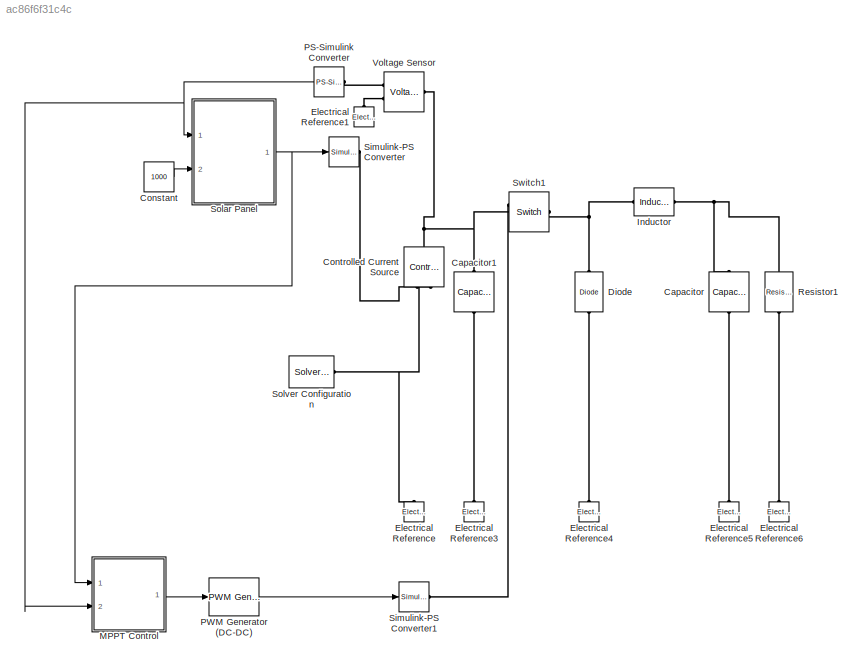
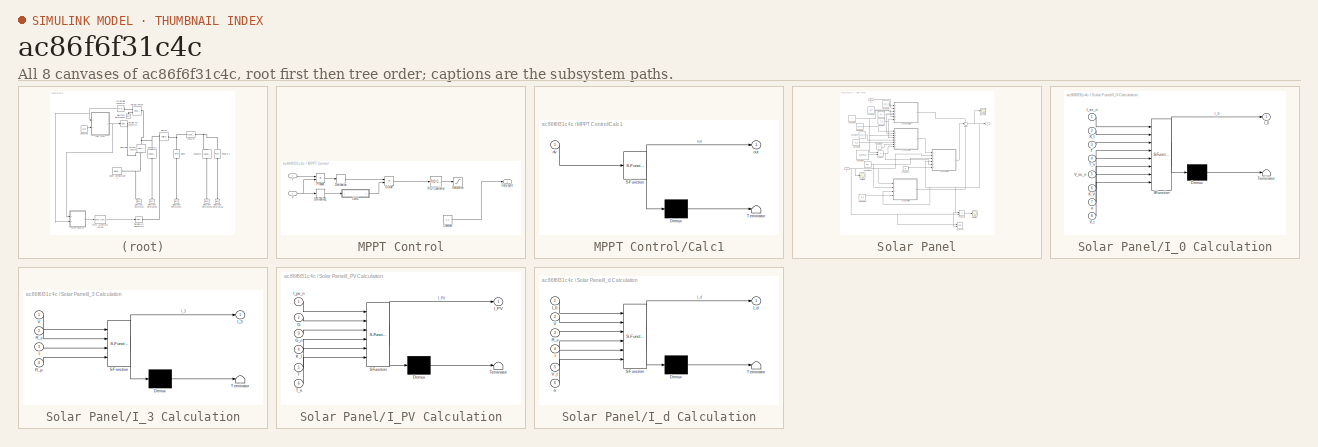
[diagram: thumbnail index - all 8 canvases of the model, root first then tree order]
MODEL slx_ac86f6f31c4c
KIND model
CONFIG AbsTol = auto
CONFIG FixedStep = auto
CONFIG MaxStep = auto
CONFIG MinStep = auto
CONFIG RelTol = 1e-3
CONFIG SampleTimeConstraint = Unconstrained
CONFIG Solver = ode2
CONFIG SolverMode = Auto
CONFIG SolverName = ode2
CONFIG StartTime = 0.0
CONFIG StopTime = 10.0
BLOCK [Reference] Capacitor  REF=fl_lib/Electrical/Electrical Elements/Capacitor
  Ports = [0, 0, 0, 0, 0, 1, 1]
  SourceBlock = fl_lib/Electrical/Electrical Elements/Capacitor
  SourceType = Capacitor
BLOCK [Reference] Capacitor1  REF=fl_lib/Electrical/Electrical Elements/Capacitor
  Ports = [0, 0, 0, 0, 0, 1, 1]
  SourceBlock = fl_lib/Electrical/Electrical Elements/Capacitor
  SourceType = Capacitor
BLOCK [Constant] Constant
  Value = 1000
BLOCK [Reference] Controlled Current Source  REF=fl_lib/Electrical/Electrical Sources/Controlled Current
Source
  Ports = [0, 0, 0, 0, 0, 1, 2]
  SourceBlock = fl_lib/Electrical/Electrical Sources/Controlled Current\nSource
  SourceType = Controlled Current\nSource
BLOCK [Reference] Diode  REF=fl_lib/Electrical/Electrical Elements/Diode
  Ports = [0, 0, 0, 0, 0, 1, 1]
  SourceBlock = fl_lib/Electrical/Electrical Elements/Diode
  SourceType = Diode
BLOCK [Reference] Electrical Reference  REF=fl_lib/Electrical/Electrical Elements/Electrical Reference
  Ports = [0, 0, 0, 0, 0, 1]
  SourceBlock = fl_lib/Electrical/Electrical Elements/Electrical Reference
  SourceType = Electrical Reference
BLOCK [Reference] Electrical Reference1  REF=fl_lib/Electrical/Electrical Elements/Electrical Reference
  Ports = [0, 0, 0, 0, 0, 1]
  SourceBlock = fl_lib/Electrical/Electrical Elements/Electrical Reference
  SourceType = Electrical Reference
BLOCK [Reference] Electrical Reference3  REF=fl_lib/Electrical/Electrical Elements/Electrical Reference
  Ports = [0, 0, 0, 0, 0, 1]
  SourceBlock = fl_lib/Electrical/Electrical Elements/Electrical Reference
  SourceType = Electrical Reference
BLOCK [Reference] Electrical Reference4  REF=fl_lib/Electrical/Electrical Elements/Electrical Reference
  Ports = [0, 0, 0, 0, 0, 1]
  SourceBlock = fl_lib/Electrical/Electrical Elements/Electrical Reference
  SourceType = Electrical Reference
BLOCK [Reference] Electrical Reference5  REF=fl_lib/Electrical/Electrical Elements/Electrical Reference
  Ports = [0, 0, 0, 0, 0, 1]
  SourceBlock = fl_lib/Electrical/Electrical Elements/Electrical Reference
  SourceType = Electrical Reference
BLOCK [Reference] Electrical Reference6  REF=fl_lib/Electrical/Electrical Elements/Electrical Reference
  Ports = [0, 0, 0, 0, 0, 1]
  SourceBlock = fl_lib/Electrical/Electrical Elements/Electrical Reference
  SourceType = Electrical Reference
BLOCK [Reference] Inductor  REF=fl_lib/Electrical/Electrical Elements/Inductor
  Ports = [0, 0, 0, 0, 0, 1, 1]
  SourceBlock = fl_lib/Electrical/Electrical Elements/Inductor
  SourceType = Inductor
BLOCK [SubSystem] MPPT Control
  Ports = [2, 1]
  RequestExecContextInheritance = off
  Variant = off
BLOCK [SubSystem] MPPT Control/Calc1
  ErrorFcn = Stateflow.Translate.translate
  PermitHierarchicalResolution = ExplicitOnly
  Ports = [1, 1]
  RequestExecContextInheritance = off
  SFBlockType = MATLAB Function
  TreatAsAtomicUnit = on
  Variant = off
BLOCK [Demux] MPPT Control/Calc1/ Demux 
  Outputs = 1
  Ports = [1, 1]
BLOCK [S-Function] MPPT Control/Calc1/ SFunction 
  EnableBusSupport = on
  FunctionName = sf_sfun
  PortCounts = [1 2]
  Ports = [1, 2]
  SFunctionDeploymentMode = off
  Tag = Stateflow S-Function GSK_PVModel_01 5
BLOCK [Terminator] MPPT Control/Calc1/ Terminator 
BLOCK [Inport] MPPT Control/Calc1/dv
  IconDisplay = Port number
BLOCK [Outport] MPPT Control/Calc1/out
  IconDisplay = Port number
BLOCK [Constant] MPPT Control/Constant
  Value = 0.5
BLOCK [Derivative] MPPT Control/Derivative
BLOCK [Derivative] MPPT Control/Derivative1
BLOCK [Product] MPPT Control/Divide
  InputSameDT = off
  Inputs = */
  OutDataTypeStr = Inherit: Inherit via internal rule
  Ports = [2, 1]
  RndMeth = Floor
  SaturateOnIntegerOverflow = off
BLOCK [Outport] MPPT Control/Duty cycle
  IconDisplay = Port number
BLOCK [Inport] MPPT Control/I
  IconDisplay = Port number
BLOCK [Reference] MPPT Control/PID Controller  REF=simulink/Continuous/PID Controller
  Ports = [1, 1]
  SourceBlock = simulink/Continuous/PID Controller
  SourceType = PID 1dof
BLOCK [Product] MPPT Control/Product
  InputSameDT = off
  OutDataTypeStr = Inherit: Inherit via internal rule
  Ports = [2, 1]
  RndMeth = Floor
  SaturateOnIntegerOverflow = off
BLOCK [Saturate] MPPT Control/Saturation
  InputPortMap = u0
  LowerLimit = 0
  Ports = [1, 1]
  UpperLimit = 1
BLOCK [Inport] MPPT Control/V
  IconDisplay = Port number
  Port = 2
BLOCK [Reference] PS-Simulink Converter  REF=nesl_utility/PS-Simulink
Converter
  Ports = [0, 1, 0, 0, 0, 1]
  SourceBlock = nesl_utility/PS-Simulink\nConverter
  SourceType = PS-Simulink\nConverter
BLOCK [Reference] PWM Generator (DC-DC)  REF=powerlib_meascontrol/Pulse & Signal
Generators/PWM Generator
(DC-DC)
  Ports = [1, 1]
  SourceBlock = powerlib_meascontrol/Pulse & Signal\nGenerators/PWM Generator\n(DC-DC)
  SourceType = PWM Generator (DC-DC)
BLOCK [Reference] Resistor1  REF=fl_lib/Electrical/Electrical Elements/Resistor
  Ports = [0, 0, 0, 0, 0, 1, 1]
  SourceBlock = fl_lib/Electrical/Electrical Elements/Resistor
  SourceType = Resistor
BLOCK [Reference] Simulink-PS Converter  REF=nesl_utility/Simulink-PS
Converter
  Ports = [1, 0, 0, 0, 0, 0, 1]
  SourceBlock = nesl_utility/Simulink-PS\nConverter
  SourceType = Simulink-PS\nConverter
BLOCK [Reference] Simulink-PS Converter1  REF=nesl_utility/Simulink-PS
Converter
  Ports = [1, 0, 0, 0, 0, 0, 1]
  SourceBlock = nesl_utility/Simulink-PS\nConverter
  SourceType = Simulink-PS\nConverter
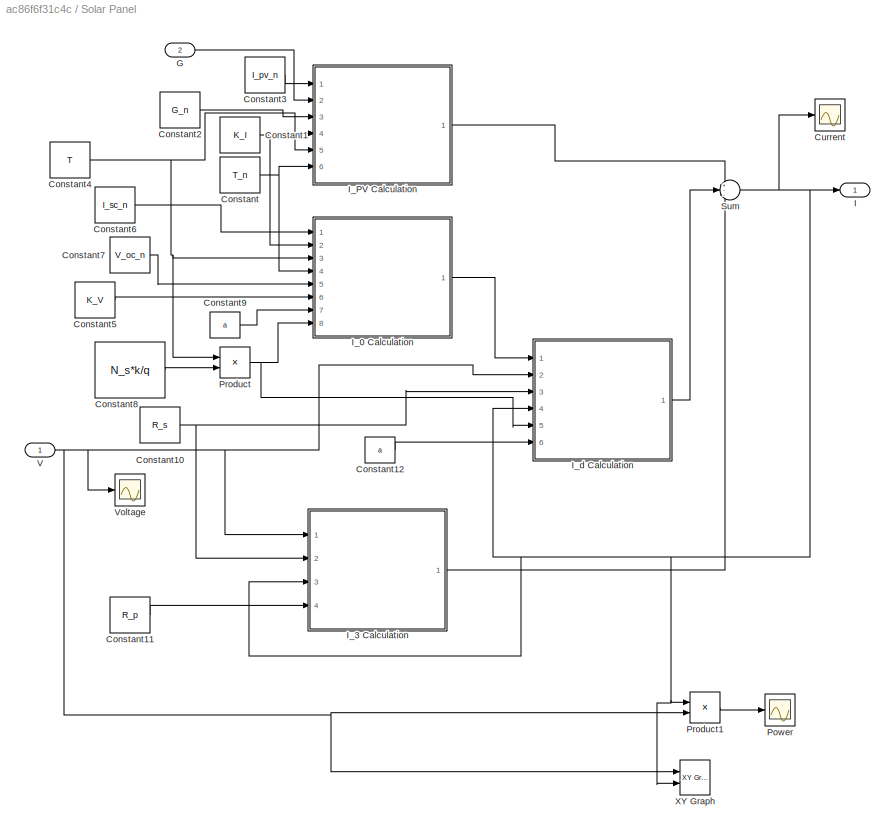
BLOCK [SubSystem] Solar Panel
  Ports = [2, 1]
  RequestExecContextInheritance = off
  Variant = off
BLOCK [Constant] Solar Panel/Constant
  Value = T_n
BLOCK [Constant] Solar Panel/Constant1
  Value = K_I
BLOCK [Constant] Solar Panel/Constant10
  Value = R_s
BLOCK [Constant] Solar Panel/Constant11
  Value = R_p
BLOCK [Constant] Solar Panel/Constant12
  Value = a
BLOCK [Constant] Solar Panel/Constant2
  Value = G_n
BLOCK [Constant] Solar Panel/Constant3
  Value = I_pv_n
BLOCK [Constant] Solar Panel/Constant4
  Value = T
BLOCK [Constant] Solar Panel/Constant5
  Value = K_V
BLOCK [Constant] Solar Panel/Constant6
  Value = I_sc_n
BLOCK [Constant] Solar Panel/Constant7
  Value = V_oc_n
BLOCK [Constant] Solar Panel/Constant8
  Value = N_s*k/q
BLOCK [Constant] Solar Panel/Constant9
  Value = a
BLOCK [Scope] Solar Panel/Current
  Ports = [1]
  ScopeSpecificationString = Simulink.scopes.TimeScopeBlockCfg('CurrentConfiguration', extmgr.ConfigurationSet(extmgr.Configuration('Core','General UI',true),extmgr.Configuration('Core','Source UI',true),extmgr.Configuration('Sources','WiredSimulink',true,'DataLoggingVariableName','ScopeData1'),extmgr.Configuration('Visuals','Time Domain',true,'SerializedDisplays',{struct('MinYLimReal','6.5184','MaxYLimReal','6.55628','YLabel...<+1436ch>
BLOCK [Inport] Solar Panel/G
  IconDisplay = Port number
  Port = 2
BLOCK [Outport] Solar Panel/I
  IconDisplay = Port number
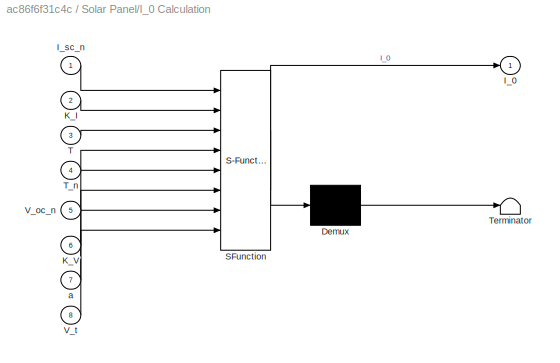
BLOCK [SubSystem] Solar Panel/I_0 Calculation
  ErrorFcn = Stateflow.Translate.translate
  PermitHierarchicalResolution = ExplicitOnly
  Ports = [8, 1]
  RequestExecContextInheritance = off
  SFBlockType = MATLAB Function
  TreatAsAtomicUnit = on
  Variant = off
BLOCK [Demux] Solar Panel/I_0 Calculation/ Demux 
  Outputs = 1
  Ports = [1, 1]
BLOCK [S-Function] Solar Panel/I_0 Calculation/ SFunction 
  EnableBusSupport = on
  FunctionName = sf_sfun
  PortCounts = [8 2]
  Ports = [8, 2]
  SFunctionDeploymentMode = off
  Tag = Stateflow S-Function GSK_PVModel_01 2
BLOCK [Terminator] Solar Panel/I_0 Calculation/ Terminator 
BLOCK [Outport] Solar Panel/I_0 Calculation/I_0
  IconDisplay = Port number
BLOCK [Inport] Solar Panel/I_0 Calculation/I_sc_n
  IconDisplay = Port number
BLOCK [Inport] Solar Panel/I_0 Calculation/K_I
  IconDisplay = Port number
  Port = 2
BLOCK [Inport] Solar Panel/I_0 Calculation/K_V
  IconDisplay = Port number
  Port = 6
BLOCK [Inport] Solar Panel/I_0 Calculation/T
  IconDisplay = Port number
  Port = 3
BLOCK [Inport] Solar Panel/I_0 Calculation/T_n
  IconDisplay = Port number
  Port = 4
BLOCK [Inport] Solar Panel/I_0 Calculation/V_oc_n
  IconDisplay = Port number
  Port = 5
BLOCK [Inport] Solar Panel/I_0 Calculation/V_t
  IconDisplay = Port number
  Port = 8
BLOCK [Inport] Solar Panel/I_0 Calculation/a
  IconDisplay = Port number
  Port = 7
BLOCK [SubSystem] Solar Panel/I_3 Calculation
  ErrorFcn = Stateflow.Translate.translate
  PermitHierarchicalResolution = ExplicitOnly
  Ports = [4, 1]
  RequestExecContextInheritance = off
  SFBlockType = MATLAB Function
  TreatAsAtomicUnit = on
  Variant = off
BLOCK [Demux] Solar Panel/I_3 Calculation/ Demux 
  Outputs = 1
  Ports = [1, 1]
BLOCK [S-Function] Solar Panel/I_3 Calculation/ SFunction 
  EnableBusSupport = on
  FunctionName = sf_sfun
  PortCounts = [4 2]
  Ports = [4, 2]
  SFunctionDeploymentMode = off
  Tag = Stateflow S-Function GSK_PVModel_01 4
BLOCK [Terminator] Solar Panel/I_3 Calculation/ Terminator 
BLOCK [Inport] Solar Panel/I_3 Calculation/I
  IconDisplay = Port number
  Port = 3
BLOCK [Outport] Solar Panel/I_3 Calculation/I_3
  IconDisplay = Port number
BLOCK [Inport] Solar Panel/I_3 Calculation/R_p
  IconDisplay = Port number
  Port = 4
BLOCK [Inport] Solar Panel/I_3 Calculation/R_s
  IconDisplay = Port number
  Port = 2
BLOCK [Inport] Solar Panel/I_3 Calculation/V
  IconDisplay = Port number
BLOCK [SubSystem] Solar Panel/I_PV Calculation
  ErrorFcn = Stateflow.Translate.translate
  PermitHierarchicalResolution = ExplicitOnly
  Ports = [6, 1]
  RequestExecContextInheritance = off
  SFBlockType = MATLAB Function
  TreatAsAtomicUnit = on
  Variant = off
BLOCK [Demux] Solar Panel/I_PV Calculation/ Demux 
  Outputs = 1
  Ports = [1, 1]
BLOCK [S-Function] Solar Panel/I_PV Calculation/ SFunction 
  EnableBusSupport = on
  FunctionName = sf_sfun
  PortCounts = [6 2]
  Ports = [6, 2]
  SFunctionDeploymentMode = off
  Tag = Stateflow S-Function GSK_PVModel_01 1
BLOCK [Terminator] Solar Panel/I_PV Calculation/ Terminator 
BLOCK [Inport] Solar Panel/I_PV Calculation/G
  IconDisplay = Port number
  Port = 2
BLOCK [Inport] Solar Panel/I_PV Calculation/G_n
  IconDisplay = Port number
  Port = 3
BLOCK [Outport] Solar Panel/I_PV Calculation/I_PV
  IconDisplay = Port number
BLOCK [Inport] Solar Panel/I_PV Calculation/I_pv_n
  IconDisplay = Port number
BLOCK [Inport] Solar Panel/I_PV Calculation/K_I
  IconDisplay = Port number
  Port = 4
BLOCK [Inport] Solar Panel/I_PV Calculation/T
  IconDisplay = Port number
  Port = 5
BLOCK [Inport] Solar Panel/I_PV Calculation/T_n
  IconDisplay = Port number
  Port = 6
BLOCK [SubSystem] Solar Panel/I_d Calculation
  ErrorFcn = Stateflow.Translate.translate
  PermitHierarchicalResolution = ExplicitOnly
  Ports = [6, 1]
  RequestExecContextInheritance = off
  SFBlockType = MATLAB Function
  TreatAsAtomicUnit = on
  Variant = off
BLOCK [Demux] Solar Panel/I_d Calculation/ Demux 
  Outputs = 1
  Ports = [1, 1]
BLOCK [S-Function] Solar Panel/I_d Calculation/ SFunction 
  EnableBusSupport = on
  FunctionName = sf_sfun
  PortCounts = [6 2]
  Ports = [6, 2]
  SFunctionDeploymentMode = off
  Tag = Stateflow S-Function GSK_PVModel_01 3
BLOCK [Terminator] Solar Panel/I_d Calculation/ Terminator 
BLOCK [Inport] Solar Panel/I_d Calculation/I
  IconDisplay = Port number
  Port = 4
BLOCK [Inport] Solar Panel/I_d Calculation/I_0
  IconDisplay = Port number
BLOCK [Outport] Solar Panel/I_d Calculation/I_d
  IconDisplay = Port number
BLOCK [Inport] Solar Panel/I_d Calculation/R_s
  IconDisplay = Port number
  Port = 3
BLOCK [Inport] Solar Panel/I_d Calculation/V
  IconDisplay = Port number
  Port = 2
BLOCK [Inport] Solar Panel/I_d Calculation/V_t
  IconDisplay = Port number
  Port = 5
BLOCK [Inport] Solar Panel/I_d Calculation/a
  IconDisplay = Port number
  Port = 6
BLOCK [Scope] Solar Panel/Power
  Ports = [1]
  ScopeSpecificationString = Simulink.scopes.TimeScopeBlockCfg('CurrentConfiguration', extmgr.ConfigurationSet(extmgr.Configuration('Core','General UI',true),extmgr.Configuration('Core','Source UI',true),extmgr.Configuration('Sources','WiredSimulink',true,'DataLoggingVariableName','ScopeData2'),extmgr.Configuration('Visuals','Time Domain',true,'SerializedDisplays',{struct('MinYLimReal','71.28053','MaxYLimReal','90.93263','YLa...<+1444ch>
BLOCK [Product] Solar Panel/Product
  InputSameDT = off
  OutDataTypeStr = Inherit: Inherit via internal rule
  Ports = [2, 1]
  RndMeth = Floor
  SaturateOnIntegerOverflow = off
BLOCK [Product] Solar Panel/Product1
  InputSameDT = off
  OutDataTypeStr = Inherit: Inherit via internal rule
  Ports = [2, 1]
  RndMeth = Floor
  SaturateOnIntegerOverflow = off
BLOCK [Sum] Solar Panel/Sum
  IconShape = round
  InputSameDT = off
  Inputs = +--
  OutDataTypeStr = Inherit: Inherit via internal rule
  Ports = [3, 1]
  SaturateOnIntegerOverflow = off
BLOCK [Inport] Solar Panel/V
  IconDisplay = Port number
BLOCK [Scope] Solar Panel/Voltage
  Ports = [1]
  ScopeSpecificationString = Simulink.scopes.TimeScopeBlockCfg('CurrentConfiguration', extmgr.ConfigurationSet(extmgr.Configuration('Core','General UI',true),extmgr.Configuration('Core','Source UI',true),extmgr.Configuration('Sources','WiredSimulink',true),extmgr.Configuration('Visuals','Time Domain',true,'SerializedDisplays',{struct('MinYLimReal','-3.75362','MaxYLimReal','33.78265','YLabelReal','','MinYLimMag','0.00000','Max...<+1405ch>
BLOCK [Reference] Solar Panel/XY Graph  REF=simulink/Sinks/XY Graph
  Ports = [2]
  SourceBlock = simulink/Sinks/XY Graph
  SourceType = XY scope.
BLOCK [Reference] Solver Configuration  REF=nesl_utility/Solver
Configuration
  Ports = [0, 0, 0, 0, 0, 0, 1]
  SourceBlock = nesl_utility/Solver\nConfiguration
  SourceType = Solver\nConfiguration
BLOCK [Reference] Switch1  REF=fl_lib/Electrical/Electrical Elements/Switch
  Ports = [0, 0, 0, 0, 0, 1, 2]
  SourceBlock = fl_lib/Electrical/Electrical Elements/Switch
  SourceType = Switch
BLOCK [Reference] Voltage Sensor  REF=fl_lib/Electrical/Electrical Sensors/Voltage Sensor
  Ports = [0, 0, 0, 0, 0, 1, 2]
  SourceBlock = fl_lib/Electrical/Electrical Sensors/Voltage Sensor
  SourceType = Voltage Sensor
LINE Constant:1 -> Solar Panel:2
LINE MPPT Control/Calc1:1 -> MPPT Control/Divide:2
LINE MPPT Control/Constant:1 -> MPPT Control/Duty cycle:1
LINE MPPT Control/Derivative1:1 -> MPPT Control/Calc1:1
LINE MPPT Control/Derivative:1 -> MPPT Control/Divide:1
LINE MPPT Control/Divide:1 -> MPPT Control/PID Controller:1
LINE MPPT Control/I:1 -> MPPT Control/Product:1
LINE MPPT Control/PID Controller:1 -> MPPT Control/Saturation:1
LINE MPPT Control/Product:1 -> MPPT Control/Derivative:1
NET MPPT Control/V:1 -> MPPT Control/Derivative1:1, MPPT Control/Product:2
LINE MPPT Control:1 -> PWM Generator (DC-DC):1
NET PS-Simulink Converter:1 -> MPPT Control:2, Solar Panel:1
LINE PWM Generator (DC-DC):1 -> Simulink-PS Converter1:1
NET Solar Panel/Constant10:1 -> Solar Panel/I_3 Calculation:2, Solar Panel/I_d Calculation:3
LINE Solar Panel/Constant11:1 -> Solar Panel/I_3 Calculation:4
LINE Solar Panel/Constant12:1 -> Solar Panel/I_d Calculation:6
NET Solar Panel/Constant1:1 -> Solar Panel/I_0 Calculation:2, Solar Panel/I_PV Calculation:4
LINE Solar Panel/Constant2:1 -> Solar Panel/I_PV Calculation:3
LINE Solar Panel/Constant3:1 -> Solar Panel/I_PV Calculation:1
NET Solar Panel/Constant4:1 -> Solar Panel/I_0 Calculation:3, Solar Panel/I_PV Calculation:5, Solar Panel/Product:1
LINE Solar Panel/Constant5:1 -> Solar Panel/I_0 Calculation:6
LINE Solar Panel/Constant6:1 -> Solar Panel/I_0 Calculation:1
LINE Solar Panel/Constant7:1 -> Solar Panel/I_0 Calculation:5
LINE Solar Panel/Constant8:1 -> Solar Panel/Product:2
LINE Solar Panel/Constant9:1 -> Solar Panel/I_0 Calculation:7
NET Solar Panel/Constant:1 -> Solar Panel/I_0 Calculation:4, Solar Panel/I_PV Calculation:6
LINE Solar Panel/G:1 -> Solar Panel/I_PV Calculation:2
LINE Solar Panel/I_0 Calculation:1 -> Solar Panel/I_d Calculation:1
LINE Solar Panel/I_3 Calculation:1 -> Solar Panel/Sum:3
LINE Solar Panel/I_PV Calculation:1 -> Solar Panel/Sum:1
LINE Solar Panel/I_d Calculation:1 -> Solar Panel/Sum:2
LINE Solar Panel/Product1:1 -> Solar Panel/Power:1
NET Solar Panel/Product:1 -> Solar Panel/I_0 Calculation:8, Solar Panel/I_d Calculation:5
NET Solar Panel/Sum:1 -> Solar Panel/Current:1, Solar Panel/I:1, Solar Panel/I_3 Calculation:3, Solar Panel/I_d Calculation:4, Solar Panel/Product1:1, Solar Panel/XY Graph:2
NET Solar Panel/V:1 -> Solar Panel/I_3 Calculation:1, Solar Panel/I_d Calculation:2, Solar Panel/Product1:2, Solar Panel/Voltage:1, Solar Panel/XY Graph:1
NET Solar Panel:1 -> MPPT Control:1, Simulink-PS Converter:1
PNET net1: Capacitor1:LConn1 -- Controlled Current Source:LConn1 -- Switch1:LConn1 -- Voltage Sensor:LConn1
PLINE Capacitor1:RConn1 -- Electrical Reference3:LConn1
PNET net2: Capacitor:LConn1 -- Inductor:RConn1 -- Resistor1:LConn1
PLINE Capacitor:RConn1 -- Electrical Reference5:LConn1
PLINE Controlled Current Source:RConn1 -- Simulink-PS Converter:RConn1
PNET net3: Controlled Current Source:RConn2 -- Electrical Reference:LConn1 -- Solver Configuration:RConn1
PLINE Diode:LConn1 -- Electrical Reference4:LConn1
PNET net4: Diode:RConn1 -- Inductor:LConn1 -- Switch1:RConn2
PLINE Electrical Reference1:LConn1 -- Voltage Sensor:RConn2
PLINE Electrical Reference6:LConn1 -- Resistor1:RConn1
PLINE PS-Simulink Converter:LConn1 -- Voltage Sensor:RConn1
PLINE Simulink-PS Converter1:RConn1 -- Switch1:RConn1
note: NET lines group one-source signal fan-out (src -> all destinations, sorted); 1:1 wires keep LINE; PNET lines group multi-terminal physical nets as a canonical sorted terminal list (undirected conserving connections); 2-terminal nets keep the pairwise PLINE form
CHART Solar Panel/I_PV Calculation states=1 transitions=1
  STATE_LABEL 'eML_blk_kernel()'
  STATE_LABEL 'SCRIPT:\nfunction I_PV = fcn(I_pv_n, G, G_n, K_I, T, T_n )\n%#codegen\nDelta_T = (T - T_n);\nI_PV = (I_pv_n + K_I*Delta_T)*G/G_n;'
CHART Solar Panel/I_0 Calculation states=1 transitions=1
  STATE_LABEL 'eML_blk_kernel()'
  STATE_LABEL 'SCRIPT:\nfunction I_0 = fcn(I_sc_n, K_I, T, T_n, V_oc_n, K_V, a, V_t)\n%#codegen\nDelta_T = (T - T_n);\nI_0 = (I_sc_n + K_I * Delta_T )/(exp((V_oc_n + K_V*Delta_T)/(a*V_t))-1);'
CHART Solar Panel/I_d Calculation states=1 transitions=1
  STATE_LABEL 'eML_blk_kernel()'
  STATE_LABEL 'SCRIPT:\nfunction I_d = fcn(I_0, V, R_s, I, V_t, a)\n%#codegen\nI_d = I_0*(exp((V+R_s*I)/(V_t*a))-1);'
CHART Solar Panel/I_3 Calculation states=1 transitions=1
  STATE_LABEL 'eML_blk_kernel()'
  STATE_LABEL 'SCRIPT:\nfunction I_3 = fcn(V, R_s, I, R_p)\n%#codegen\nI_3 = (V+R_s*I)/R_p;'
CHART MPPT Control/Calc1 states=1 transitions=1
  STATE_LABEL 'eML_blk_kernel()'
  STATE_LABEL 'SCRIPT:\nfunction out = fcn(dv)\n%#codegen\nif dv == 0\n    out = 0.01;\nelse\n    out = dv;\nend'
